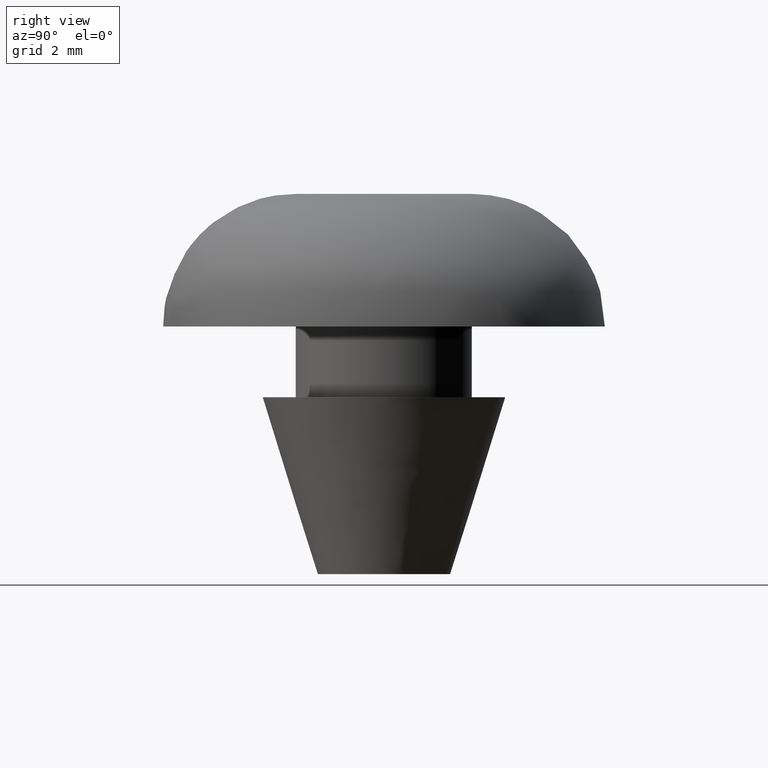
[diagram: clean part render]
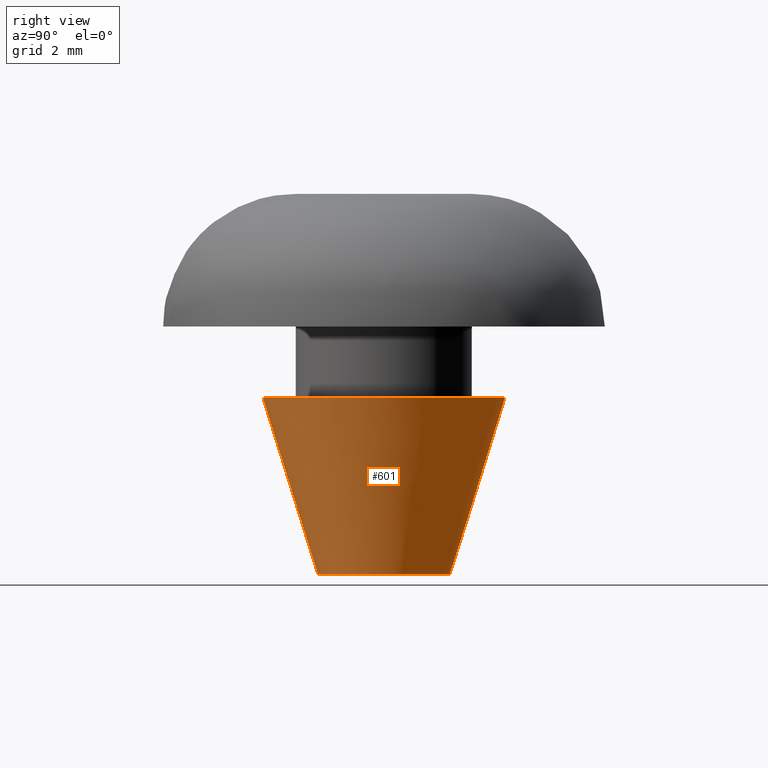
[diagram: same view with one face highlighted and labeled with its STEP entity id]
A machine part, right view. The second image highlights one B-rep face of the part: STEP entity #601.
In plain terms, the highlighted face is a freeform B-spline surface patch.
Its self-contained STEP definition (entity closure, byte-faithful):
#440=CARTESIAN_POINT('',(-0.117687202829106,1.495375771703661,-0.000001091936049));
#441=VERTEX_POINT('',#440);
#455=CARTESIAN_POINT('',(0.117687202829106,-1.495375771703661,-0.000001091936049));
#456=VERTEX_POINT('',#455);
#472=CARTESIAN_POINT('',(0.215762513258509,-2.741522667765943,4.000000000001242));
#473=VERTEX_POINT('',#472);
#474=CARTESIAN_POINT('',(0.117687202829106,-1.495375771703661,-0.000001091936049));
#475=CARTESIAN_POINT('',(0.215762513258509,-2.741522667765943,4.000000000001242));
#476=QUASI_UNIFORM_CURVE('',1,(#474,#475),.UNSPECIFIED.,.F.,.U.);
#477=EDGE_CURVE('',#456,#473,#476,.T.);
#496=CARTESIAN_POINT('',(-0.215762513258509,2.741522667765943,4.000000000001242));
#497=VERTEX_POINT('',#496);
#511=CARTESIAN_POINT('',(-0.117687202829106,1.495375771703661,-0.000001091936049));
#512=CARTESIAN_POINT('',(-0.215762513258509,2.741522667765943,4.000000000001242));
#513=QUASI_UNIFORM_CURVE('',1,(#511,#512),.UNSPECIFIED.,.F.,.U.);
#514=EDGE_CURVE('',#441,#497,#513,.T.);
#519=CARTESIAN_POINT('',(0.115236796850273,-1.464222333920532,-0.100000000000000));
#520=CARTESIAN_POINT('',(1.579459130770805,-1.348985537070258,-0.100000000000000));
#521=CARTESIAN_POINT('',(1.464222333920532,0.115236796850273,-0.100000000000000));
#522=CARTESIAN_POINT('',(1.348985537070258,1.579459130770805,-0.100000000000000));
#523=CARTESIAN_POINT('',(-0.115236796850273,1.464222333920532,-0.100000000000000));
#524=CARTESIAN_POINT('',(0.218275656161607,-2.773455176112237,4.102500000000000));
#525=CARTESIAN_POINT('',(2.991730832273845,-2.555179519950629,4.102499999999999));
#526=CARTESIAN_POINT('',(2.773455176112237,0.218275656161607,4.102500000000000));
#527=CARTESIAN_POINT('',(2.555179519950629,2.991730832273845,4.102499999999999));
#528=CARTESIAN_POINT('',(-0.218275656161607,2.773455176112237,4.102500000000000));
#536=(BOUNDED_SURFACE()B_SPLINE_SURFACE(2,1,((#519,#524),(#520,#525),(#521,#526),(#522,#527),(#523,#528)),.UNSPECIFIED.,.F.,.F.,.U.)B_SPLINE_SURFACE_WITH_KNOTS((3,2,3),(2,2),(0.0,4.609420298783092,9.218840597566183),(0.0,4.402921063521530),.UNSPECIFIED.)GEOMETRIC_REPRESENTATION_ITEM()RATIONAL_B_SPLINE_SURFACE(((1.0,1.0),(0.707106781186548,0.707106781186548),(1.0,1.0),(0.707106781186548,0.707106781186548),(1.0,1.0)))REPRESENTATION_ITEM('')SURFACE());
#537=CARTESIAN_POINT('',(1.500000000000000,0.0,0.0));
#538=VERTEX_POINT('',#537);
#539=CARTESIAN_POINT('',(-0.117687202829106,1.495375771703661,-0.000001091936049));
#540=CARTESIAN_POINT('',(-0.058934423949279,1.499999665998666,-0.000001072107037));
#541=CARTESIAN_POINT('',(0.000000025760220,1.499999672681416,-0.000001050656154));
#542=CARTESIAN_POINT('',(1.500000012374056,1.499999842770821,-0.000000504688129));
#543=CARTESIAN_POINT('',(1.500000000000000,0.0,0.0));
#551=(BOUNDED_CURVE()B_SPLINE_CURVE(2,(#539,#540,#541,#542,#543),.UNSPECIFIED.,.F.,.U.)B_SPLINE_CURVE_WITH_KNOTS((3,2,3),(0.236331462727521,0.250000000000000,0.500000000000000),.UNSPECIFIED.)CURVE()GEOMETRIC_REPRESENTATION_ITEM()RATIONAL_B_SPLINE_CURVE((0.969723694451448,0.983986312487168,1.0,0.707106781186548,1.0))REPRESENTATION_ITEM(''));
#552=EDGE_CURVE('',#441,#538,#551,.T.);
#553=ORIENTED_EDGE('',*,*,#552,.F.);
#554=ORIENTED_EDGE('',*,*,#514,.T.);
#555=CARTESIAN_POINT('',(2.750000000000000,0.0,4.0));
#556=VERTEX_POINT('',#555);
#557=CARTESIAN_POINT('',(-0.215762513258509,2.741522667765943,4.000000000001241));
#558=CARTESIAN_POINT('',(-0.108047794278028,2.750000000000000,4.000000000000001));
#559=CARTESIAN_POINT('',(0.0,2.750000000000000,4.0));
#560=CARTESIAN_POINT('',(2.750000000000000,2.750000000000000,4.000000000000000));
#561=CARTESIAN_POINT('',(2.750000000000000,0.0,4.0));
#569=(BOUNDED_CURVE()B_SPLINE_CURVE(2,(#557,#558,#559,#560,#561),.UNSPECIFIED.,.F.,.U.)B_SPLINE_CURVE_WITH_KNOTS((3,2,3),(0.236331300631903,0.250000000000000,0.500000000000000),.UNSPECIFIED.)CURVE()GEOMETRIC_REPRESENTATION_ITEM()RATIONAL_B_SPLINE_CURVE((0.969723356170013,0.983986122580339,1.0,0.707106781186548,1.0))REPRESENTATION_ITEM(''));
#570=EDGE_CURVE('',#497,#556,#569,.T.);
#571=ORIENTED_EDGE('',*,*,#570,.T.);
#572=CARTESIAN_POINT('',(2.750000000000000,0.0,4.0));
#573=CARTESIAN_POINT('',(2.750000000000000,-2.542073852047209,4.000000000000001));
#574=CARTESIAN_POINT('',(0.215762513258509,-2.741522667765943,4.000000000001242));
#582=(BOUNDED_CURVE()B_SPLINE_CURVE(2,(#572,#573,#574),.UNSPECIFIED.,.F.,.U.)B_SPLINE_CURVE_WITH_KNOTS((3,3),(0.500000000000000,0.736331300631902),.UNSPECIFIED.)CURVE()GEOMETRIC_REPRESENTATION_ITEM()RATIONAL_B_SPLINE_CURVE((1.0,0.723120658606210,0.969723356170011))REPRESENTATION_ITEM(''));
#583=EDGE_CURVE('',#556,#473,#582,.T.);
#584=ORIENTED_EDGE('',*,*,#583,.T.);
#585=ORIENTED_EDGE('',*,*,#477,.F.);
#586=CARTESIAN_POINT('',(1.500000000000000,0.0,0.0));
#587=CARTESIAN_POINT('',(1.499999986613836,-1.386586882573644,-0.000000545968024));
#588=CARTESIAN_POINT('',(0.117687202829106,-1.495375771703661,-0.000001091936049));
#596=(BOUNDED_CURVE()B_SPLINE_CURVE(2,(#586,#587,#588),.UNSPECIFIED.,.F.,.U.)B_SPLINE_CURVE_WITH_KNOTS((3,3),(0.500000000000000,0.736331462727521),.UNSPECIFIED.)CURVE()GEOMETRIC_REPRESENTATION_ITEM()RATIONAL_B_SPLINE_CURVE((1.0,0.723120468699380,0.969723694451448))REPRESENTATION_ITEM(''));
#597=EDGE_CURVE('',#538,#456,#596,.T.);
#598=ORIENTED_EDGE('',*,*,#597,.F.);
#599=EDGE_LOOP('',(#553,#554,#571,#584,#585,#598));
#600=FACE_OUTER_BOUND('',#599,.T.);
#601=ADVANCED_FACE('',(#600),#536,.T.);